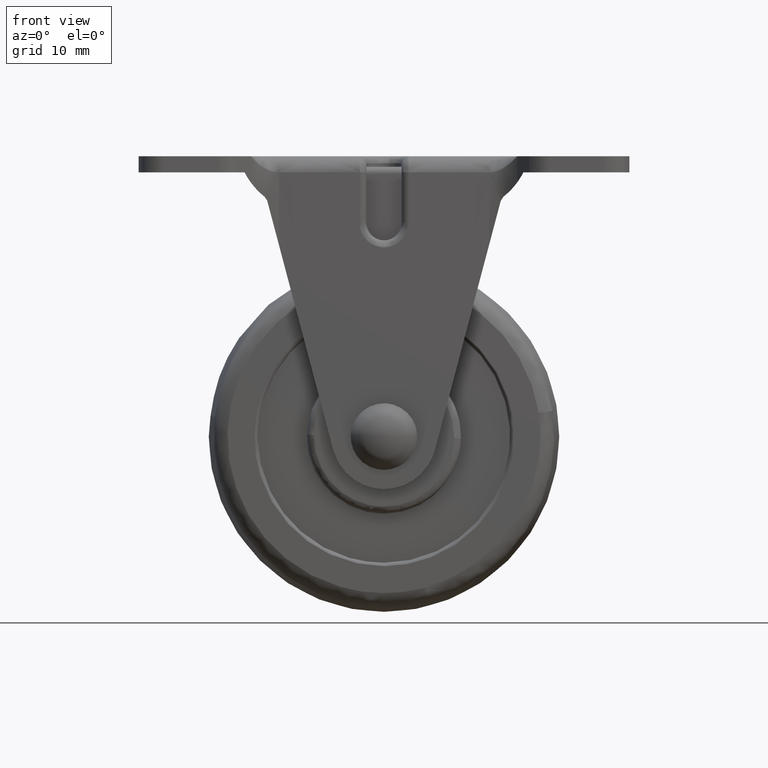
[diagram: clean part render]
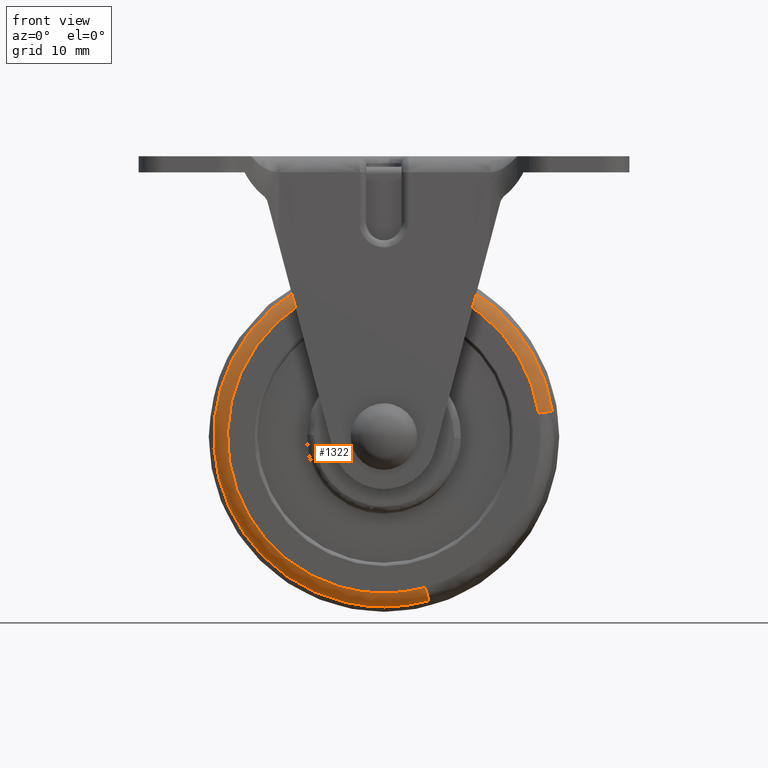
[diagram: same view with one face highlighted and labeled with its STEP entity id]
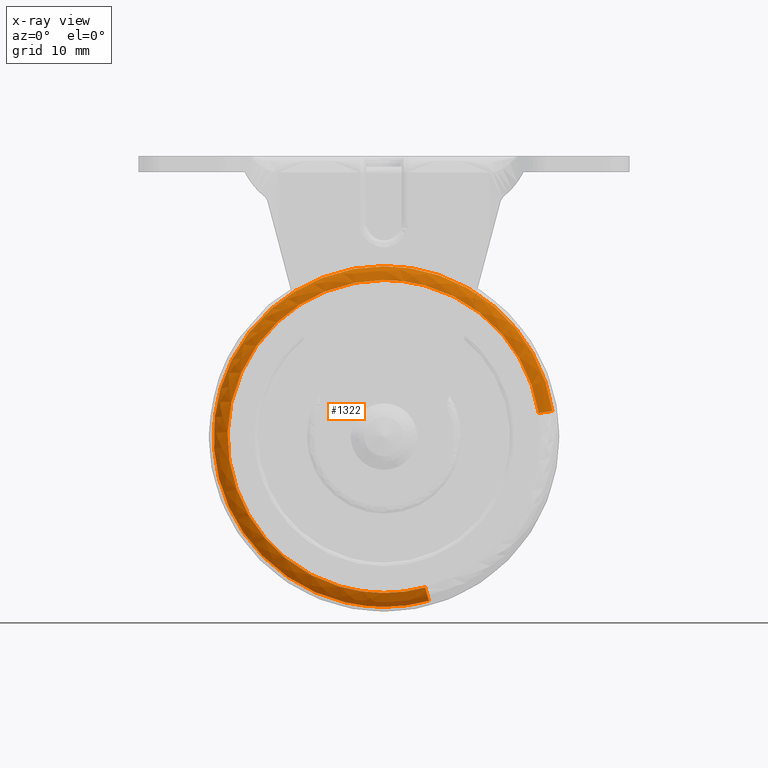
[diagram: x-ray of the same camera — body ghosted, the highlighted face saturated]
A machine part, front view. The second image highlights one B-rep face of the part: STEP entity #1322.
The next image is the same camera in x-ray: the body ghosted, the highlighted face saturated — about 0% of this face is hidden behind the body in this view.
In plain terms, the highlighted face is a freeform B-spline surface patch.
Its self-contained STEP definition (entity closure, byte-faithful):
#1111=CARTESIAN_POINT('',(5.880799708995653,-10.000000000000121,-21.540296173588580));
#1112=VERTEX_POINT('',#1111);
#1113=CARTESIAN_POINT('',(22.075248894155049,-10.000000000000121,3.354333098354020));
#1114=VERTEX_POINT('',#1113);
#1130=CARTESIAN_POINT('',(6.400181557798275,-8.333336201104064,-23.442697106765319));
#1131=VERTEX_POINT('',#1130);
#1132=CARTESIAN_POINT('',(6.400181557798276,-8.333336201104064,-23.442697106765323));
#1133=CARTESIAN_POINT('',(6.325983610628135,-9.999999991913771,-23.170923566359249));
#1134=CARTESIAN_POINT('',(5.880799708995653,-10.000000000000119,-21.540296173588573));
#1142=(BOUNDED_CURVE()B_SPLINE_CURVE(2,(#1132,#1133,#1134),.UNSPECIFIED.,.F.,.U.)B_SPLINE_CURVE_WITH_KNOTS((3,3),(-1.706642054108808,-0.288869909685606),.UNSPECIFIED.)CURVE()GEOMETRIC_REPRESENTATION_ITEM()RATIONAL_B_SPLINE_CURVE((0.856067971115872,0.654322250450105,0.857349301732137))REPRESENTATION_ITEM(''));
#1143=EDGE_CURVE('',#1131,#1112,#1142,.T.);
#1145=CARTESIAN_POINT('',(24.024897467867479,-8.333326605961755,3.650578336043441));
#1146=VERTEX_POINT('',#1145);
#1162=CARTESIAN_POINT('',(24.024897467867479,-8.333326605961755,3.650578336043440));
#1163=CARTESIAN_POINT('',(23.746381007626503,-9.999999945554583,3.608259660821364));
#1164=CARTESIAN_POINT('',(22.075248894155042,-10.000000000000119,3.354333098354021));
#1172=(BOUNDED_CURVE()B_SPLINE_CURVE(2,(#1162,#1163,#1164),.UNSPECIFIED.,.F.,.U.)B_SPLINE_CURVE_WITH_KNOTS((3,3),(-1.706647337297744,-0.288869905018748),.UNSPECIFIED.)CURVE()GEOMETRIC_REPRESENTATION_ITEM()RATIONAL_B_SPLINE_CURVE((0.894640917470421,0.683802890215234,0.895978410356573))REPRESENTATION_ITEM(''));
#1173=EDGE_CURVE('',#1146,#1114,#1172,.T.);
#1178=CARTESIAN_POINT('',(24.041934111263707,-8.206990976790182,3.653170830568316));
#1179=CARTESIAN_POINT('',(20.388763280695375,-8.206990976790182,27.695104941832010));
#1180=CARTESIAN_POINT('',(-3.653170830568314,-8.206990976790182,24.041934111263707));
#1181=CARTESIAN_POINT('',(-27.695104941832010,-8.206990976790182,20.388763280695375));
#1182=CARTESIAN_POINT('',(-24.041934111263707,-8.206990976790182,-3.653170830568313));
#1183=CARTESIAN_POINT('',(-20.388763280695375,-8.206990976790182,-27.695104941832010));
#1184=CARTESIAN_POINT('',(3.653170830568317,-8.206990976790182,-24.041934111263707));
#1185=CARTESIAN_POINT('',(5.045819499579723,-8.206990976790184,-23.830321207271979));
#1186=CARTESIAN_POINT('',(6.404719919523168,-8.206990976790182,-23.459322575047299));
#1187=CARTESIAN_POINT('',(23.845321936211054,-10.118195536673053,3.623295619218309));
#1188=CARTESIAN_POINT('',(20.222026316992746,-10.118195536673054,27.468617555429361));
#1189=CARTESIAN_POINT('',(-3.623295619218308,-10.118195536673053,23.845321936211054));
#1190=CARTESIAN_POINT('',(-27.468617555429361,-10.118195536673054,20.222026316992746));
#1191=CARTESIAN_POINT('',(-23.845321936211054,-10.118195536673053,-3.623295619218308));
#1192=CARTESIAN_POINT('',(-20.222026316992746,-10.118195536673054,-27.468617555429361));
#1193=CARTESIAN_POINT('',(3.623295619218311,-10.118195536673053,-23.845321936211054));
#1194=CARTESIAN_POINT('',(5.004555367411978,-10.118195536673054,-23.635439578236568));
#1195=CARTESIAN_POINT('',(6.352342855841321,-10.118195536673051,-23.267474930203250));
#1196=CARTESIAN_POINT('',(21.949453029256400,-9.995948403558451,3.335218422208466));
#1197=CARTESIAN_POINT('',(18.614234607047933,-9.995948403558451,25.284671451464860));
#1198=CARTESIAN_POINT('',(-3.335218422208465,-9.995948403558451,21.949453029256400));
#1199=CARTESIAN_POINT('',(-25.284671451464860,-9.995948403558451,18.614234607047933));
#1200=CARTESIAN_POINT('',(-21.949453029256400,-9.995948403558451,-3.335218422208464));
#1201=CARTESIAN_POINT('',(-18.614234607047933,-9.995948403558451,-25.284671451464877));
#1202=CARTESIAN_POINT('',(3.335218422208468,-9.995948403558451,-21.949453029256400));
#1203=CARTESIAN_POINT('',(4.606658415565791,-9.995948403558453,-21.756257778198179));
#1204=CARTESIAN_POINT('',(5.847287426565841,-9.995948403558451,-21.417548878396342));
#1212=(BOUNDED_SURFACE()B_SPLINE_SURFACE(2,2,((#1178,#1187,#1196),(#1179,#1188,#1197),(#1180,#1189,#1198),(#1181,#1190,#1199),(#1182,#1191,#1200),(#1183,#1192,#1201),(#1184,#1193,#1202),(#1185,#1194,#1203),(#1186,#1195,#1204)),.UNSPECIFIED.,.F.,.F.,.U.)B_SPLINE_SURFACE_WITH_KNOTS((3,2,2,2,3),(3,3),(0.0,40.291215698833199,80.582431397666397,120.873647096499600,124.096943679974100),(0.0,3.220323191617684),.UNSPECIFIED.)GEOMETRIC_REPRESENTATION_ITEM()RATIONAL_B_SPLINE_SURFACE(((0.916759985096910,0.661617374862510,0.918230369253780),(0.648247202182504,0.467834132316123,0.649286920790775),(0.916759985096910,0.661617374862510,0.918230369253780),(0.648247202182504,0.467834132316123,0.649286920790775),(0.916759985096910,0.661617374862510,0.918230369253780),(0.648247202182504,0.467834132316123,0.649286920790775),(0.916759985096910,0.661617374862510,0.918230369253780),(0.895278966945048,0.646114718692906,0.896714897865217),(0.877234910980478,0.633092486992982,0.878641901180669)))REPRESENTATION_ITEM('')SURFACE());
#1213=CARTESIAN_POINT('',(0.0,-10.000000000000121,-22.328640000000000));
#1214=VERTEX_POINT('',#1213);
#1215=CARTESIAN_POINT('',(0.0,-10.000000000000121,-22.328640000000000));
#1216=CARTESIAN_POINT('',(2.993240116060336,-10.000000000000121,-22.328639999999996));
#1217=CARTESIAN_POINT('',(5.880799708995653,-10.000000000000119,-21.540296173588580));
#1225=(BOUNDED_CURVE()B_SPLINE_CURVE(2,(#1215,#1216,#1217),.UNSPECIFIED.,.F.,.U.)B_SPLINE_CURVE_WITH_KNOTS((3,3),(0.0,0.044901926752969),.UNSPECIFIED.)CURVE()GEOMETRIC_REPRESENTATION_ITEM()RATIONAL_B_SPLINE_CURVE((1.0,0.947394120569588,0.913685083898855))REPRESENTATION_ITEM(''));
#1226=EDGE_CURVE('',#1214,#1112,#1225,.T.);
#1227=ORIENTED_EDGE('',*,*,#1226,.F.);
#1228=CARTESIAN_POINT('',(0.0,-10.000000000000121,22.328640000000000));
#1229=VERTEX_POINT('',#1228);
#1230=CARTESIAN_POINT('',(0.0,-10.000000000000121,22.328640000000000));
#1231=CARTESIAN_POINT('',(-22.328639999999996,-10.000000000000121,22.328639999999996));
#1232=CARTESIAN_POINT('',(-22.328640000000000,-10.000000000000121,1.211545E-015));
#1233=CARTESIAN_POINT('',(-22.328639999999996,-10.000000000000121,-22.328639999999996));
#1234=CARTESIAN_POINT('',(0.0,-10.000000000000121,-22.328640000000000));
#1242=(BOUNDED_CURVE()B_SPLINE_CURVE(2,(#1230,#1231,#1232,#1233,#1234),.UNSPECIFIED.,.F.,.U.)B_SPLINE_CURVE_WITH_KNOTS((3,2,3),(0.500000000000000,0.750000000000000,1.0),.UNSPECIFIED.)CURVE()GEOMETRIC_REPRESENTATION_ITEM()RATIONAL_B_SPLINE_CURVE((1.0,0.707106781186547,1.0,0.707106781186547,1.0))REPRESENTATION_ITEM(''));
#1243=EDGE_CURVE('',#1229,#1214,#1242,.T.);
#1244=ORIENTED_EDGE('',*,*,#1243,.F.);
#1245=CARTESIAN_POINT('',(22.075248894155052,-10.000000000000119,3.354333098354021));
#1246=CARTESIAN_POINT('',(19.192103794598413,-10.000000000000121,22.328639999999993));
#1247=CARTESIAN_POINT('',(0.0,-10.000000000000121,22.328640000000000));
#1255=(BOUNDED_CURVE()B_SPLINE_CURVE(2,(#1245,#1246,#1247),.UNSPECIFIED.,.F.,.U.)B_SPLINE_CURVE_WITH_KNOTS((3,3),(0.275897584623586,0.500000000000000),.UNSPECIFIED.)CURVE()GEOMETRIC_REPRESENTATION_ITEM()RATIONAL_B_SPLINE_CURVE((0.945604234434341,0.737447688866131,1.0))REPRESENTATION_ITEM(''));
#1256=EDGE_CURVE('',#1114,#1229,#1255,.T.);
#1257=ORIENTED_EDGE('',*,*,#1256,.F.);
#1258=ORIENTED_EDGE('',*,*,#1173,.F.);
#1259=CARTESIAN_POINT('',(0.0,-8.333321590037910,24.300667711739269));
#1260=VERTEX_POINT('',#1259);
#1261=CARTESIAN_POINT('',(24.024897467867486,-8.333326605961755,3.650578336043441));
#1262=CARTESIAN_POINT('',(20.887121011303226,-8.333320939481677,24.300667777199035));
#1263=CARTESIAN_POINT('',(0.0,-8.333321590037910,24.300667711739269));
#1271=(BOUNDED_CURVE()B_SPLINE_CURVE(2,(#1261,#1262,#1263),.UNSPECIFIED.,.F.,.U.)B_SPLINE_CURVE_WITH_KNOTS((3,3),(0.275897552498955,0.500000000000000),.UNSPECIFIED.)CURVE()GEOMETRIC_REPRESENTATION_ITEM()RATIONAL_B_SPLINE_CURVE((0.945604294111996,0.737447651229784,1.0))REPRESENTATION_ITEM(''));
#1272=EDGE_CURVE('',#1146,#1260,#1271,.T.);
#1273=ORIENTED_EDGE('',*,*,#1272,.T.);
#1274=CARTESIAN_POINT('',(-24.138136436649450,-8.333326701735501,2.805847217655923));
#1275=VERTEX_POINT('',#1274);
#1276=CARTESIAN_POINT('',(0.0,-8.333321590037910,24.300667711739269));
#1277=CARTESIAN_POINT('',(-21.639551368163012,-8.333324145886706,24.300666934117171));
#1278=CARTESIAN_POINT('',(-24.138136436649454,-8.333326701735501,2.805847217655923));
#1286=(BOUNDED_CURVE()B_SPLINE_CURVE(2,(#1276,#1277,#1278),.UNSPECIFIED.,.F.,.U.)B_SPLINE_CURVE_WITH_KNOTS((3,3),(0.500000000000000,0.730000073946622),.UNSPECIFIED.)CURVE()GEOMETRIC_REPRESENTATION_ITEM()RATIONAL_B_SPLINE_CURVE((1.0,0.730538152057767,0.956886263735590))REPRESENTATION_ITEM(''));
#1287=EDGE_CURVE('',#1260,#1275,#1286,.T.);
#1288=ORIENTED_EDGE('',*,*,#1287,.T.);
#1289=CARTESIAN_POINT('',(0.0,-8.333336457595349,-24.300666066267350));
#1290=VERTEX_POINT('',#1289);
#1291=CARTESIAN_POINT('',(-24.138136436649454,-8.333326701735501,2.805847217655923));
#1292=CARTESIAN_POINT('',(-24.300666822458780,-8.333326953350335,1.407630988048116));
#1293=CARTESIAN_POINT('',(-24.300666799977542,-8.333327235907401,0.000000085287390));
#1294=CARTESIAN_POINT('',(-24.300666411872132,-8.333332113837322,-24.300666026093818));
#1295=CARTESIAN_POINT('',(0.0,-8.333336457595349,-24.300666066267350));
#1303=(BOUNDED_CURVE()B_SPLINE_CURVE(2,(#1291,#1292,#1293,#1294,#1295),.UNSPECIFIED.,.F.,.U.)B_SPLINE_CURVE_WITH_KNOTS((3,2,3),(0.730000073946622,0.750000000000000,1.0),.UNSPECIFIED.)CURVE()GEOMETRIC_REPRESENTATION_ITEM()RATIONAL_B_SPLINE_CURVE((0.956886263735590,0.976568629128781,1.0,0.707106781186547,1.0))REPRESENTATION_ITEM(''));
#1304=EDGE_CURVE('',#1275,#1290,#1303,.T.);
#1305=ORIENTED_EDGE('',*,*,#1304,.T.);
#1306=CARTESIAN_POINT('',(0.0,-8.333336457595349,-24.300666066267350));
#1307=CARTESIAN_POINT('',(3.257597794836465,-8.333336457595349,-24.300666066267343));
#1308=CARTESIAN_POINT('',(6.400181557798275,-8.333336201104064,-23.442697106765319));
#1316=(BOUNDED_CURVE()B_SPLINE_CURVE(2,(#1306,#1307,#1308),.UNSPECIFIED.,.F.,.U.)B_SPLINE_CURVE_WITH_KNOTS((3,3),(0.0,0.044901926699842),.UNSPECIFIED.)CURVE()GEOMETRIC_REPRESENTATION_ITEM()RATIONAL_B_SPLINE_CURVE((1.0,0.947394120631830,0.913685083978622))REPRESENTATION_ITEM(''));
#1317=EDGE_CURVE('',#1290,#1131,#1316,.T.);
#1318=ORIENTED_EDGE('',*,*,#1317,.T.);
#1319=ORIENTED_EDGE('',*,*,#1143,.T.);
#1320=EDGE_LOOP('',(#1227,#1244,#1257,#1258,#1273,#1288,#1305,#1318,#1319));
#1321=FACE_OUTER_BOUND('',#1320,.T.);
#1322=ADVANCED_FACE('',(#1321),#1212,.T.);